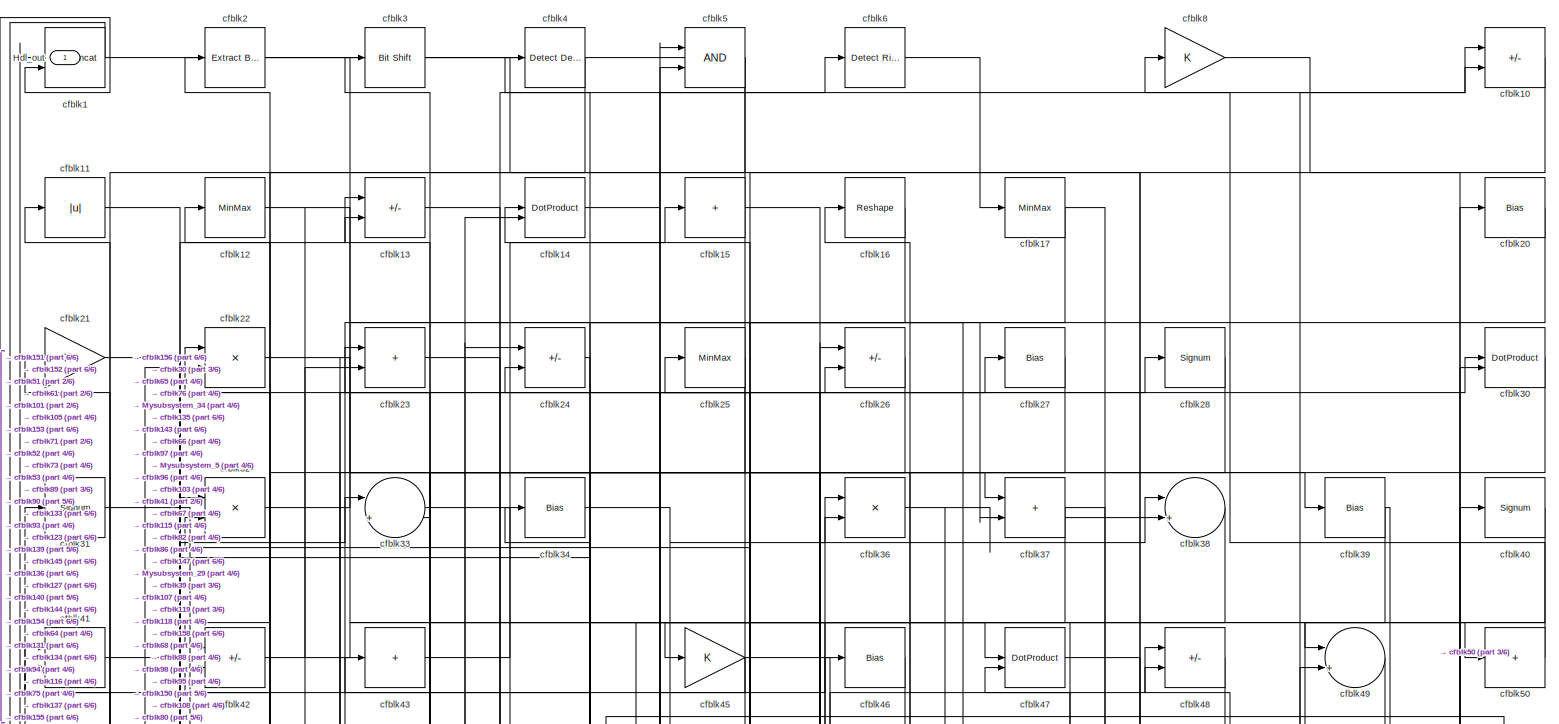
[diagram: root canvas - part 1/6, full width, top band]
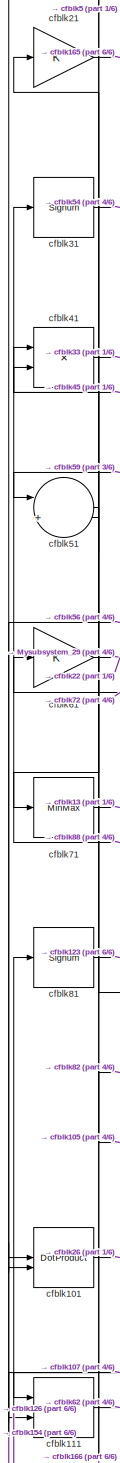
[diagram: root canvas - part 2/6, middle left region]
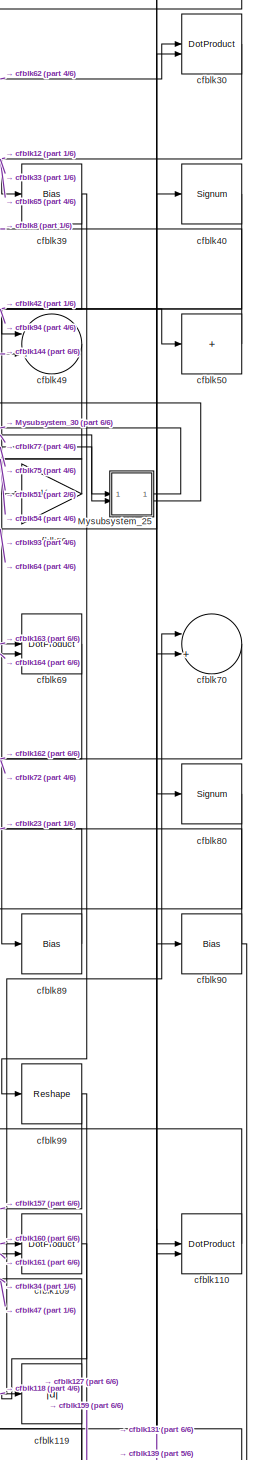
[diagram: root canvas - part 3/6, middle right region]
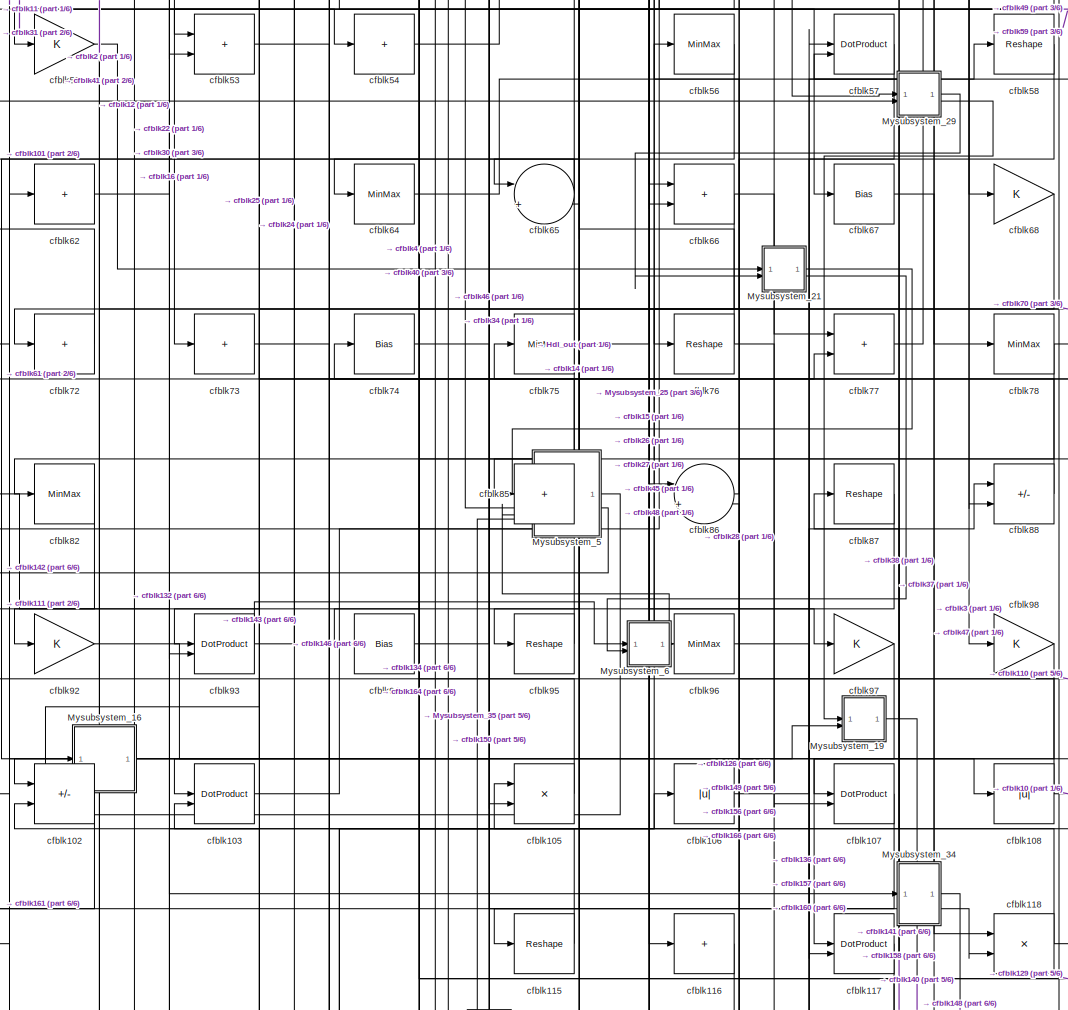
[diagram: root canvas - part 4/6, central region]
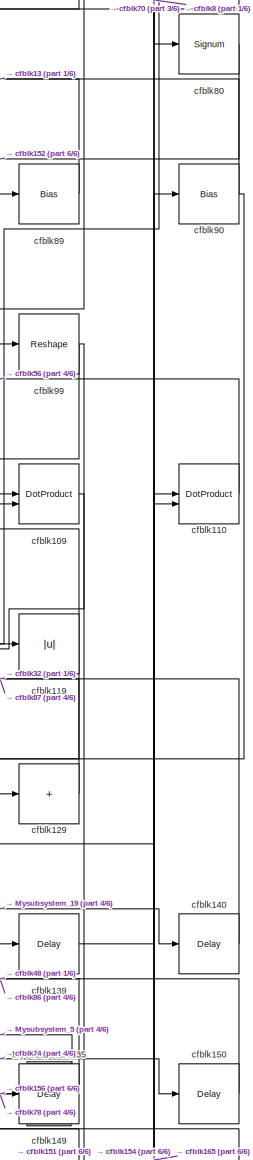
[diagram: root canvas - part 5/6, middle right region]
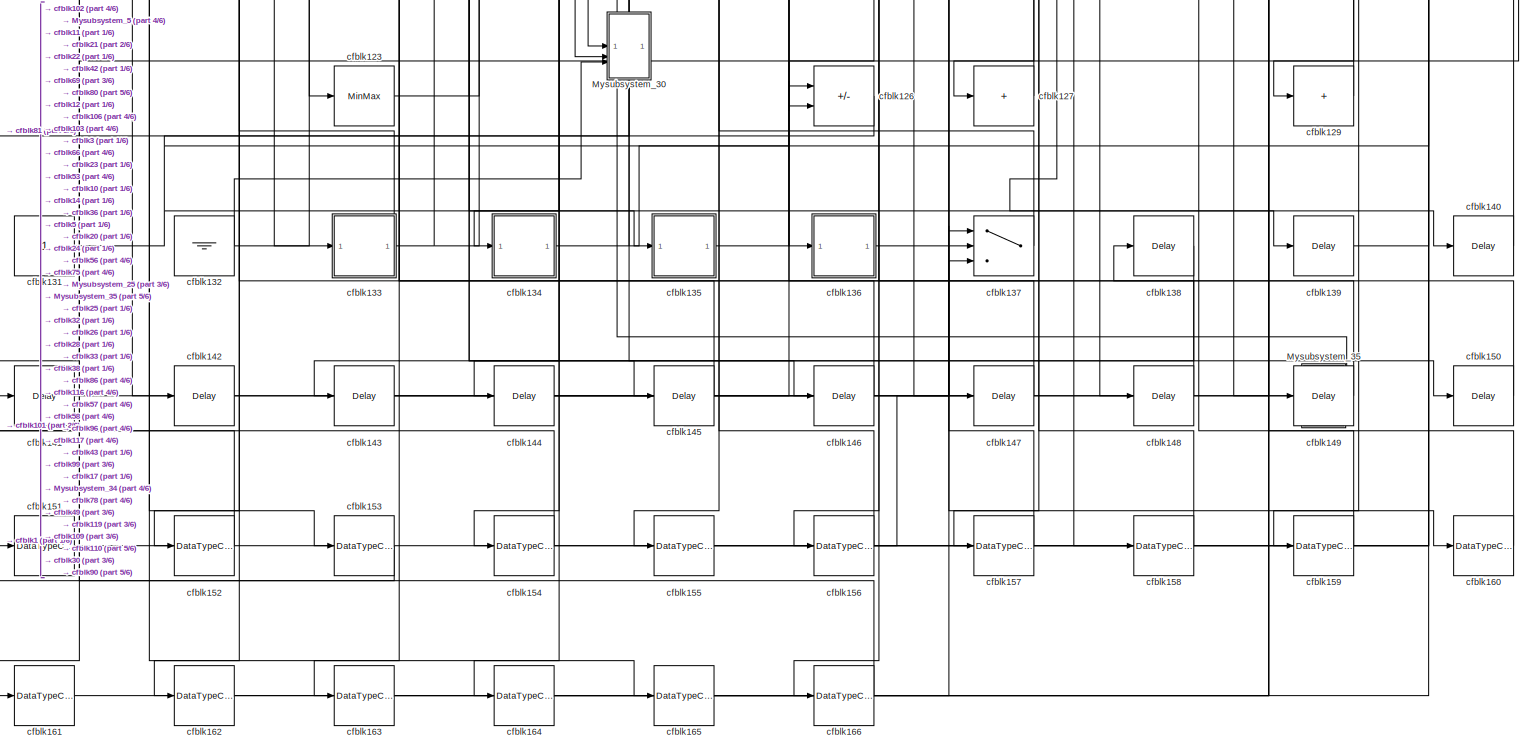
[diagram: root canvas - part 6/6, full width, bottom band]
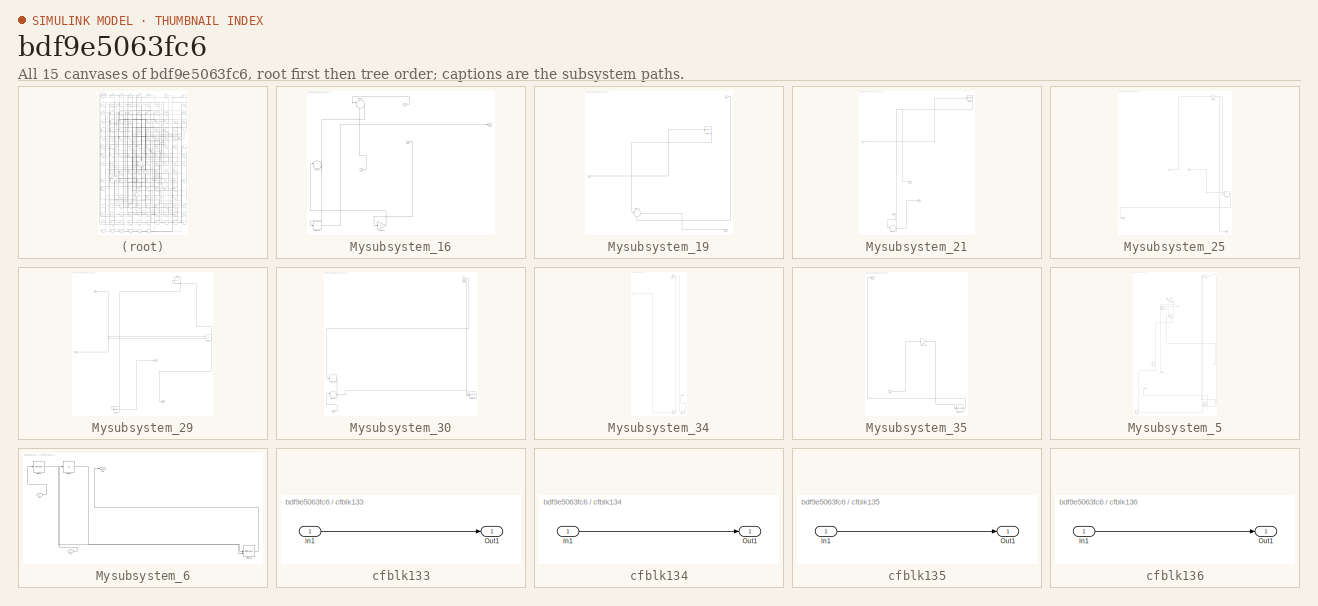
[diagram: thumbnail index - all 15 canvases of the model, root first then tree order]
MODEL slx_bdf9e5063fc6
KIND model
CONFIG AbsTol = auto
CONFIG EnableMultiTasking = off
CONFIG FixedStep = auto
CONFIG MaxStep = auto
CONFIG MinStep = auto
CONFIG RelTol = 1e-3
CONFIG SampleTimeConstraint = Unconstrained
CONFIG SolverName = VariableStepAuto
CONFIG StartTime = 0.0
CONFIG StopTime = 10.0
BLOCK [Outport] Hdl_out
  OutDataTypeStr = uint8
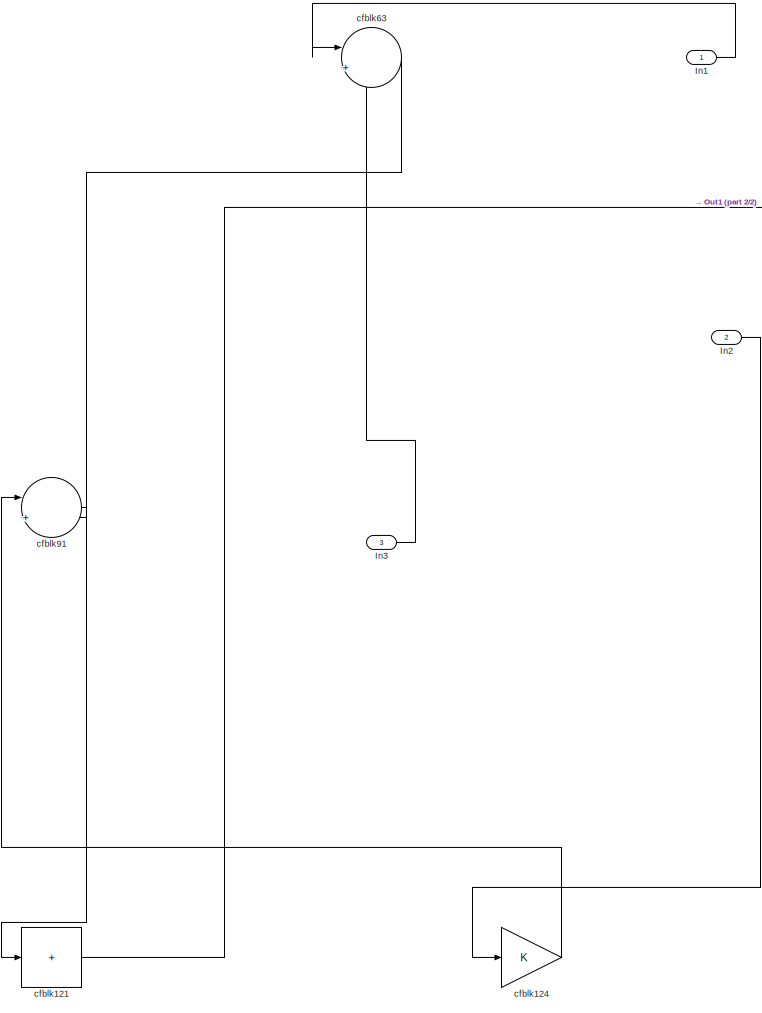
[diagram: Mysubsystem_16 - part 1/2, left side, full height]
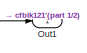
[diagram: Mysubsystem_16 - part 2/2, top right region]
BLOCK [SubSystem] Mysubsystem_16
  RTWFcnName = Mysubsystem_16
  RTWFcnNameOpts = User specified
  RTWFileNameOpts = Use function name
  RTWSystemCode = Reusable function
  TreatAsAtomicUnit = on
BLOCK [Inport] Mysubsystem_16/In1
BLOCK [Inport] Mysubsystem_16/In2
  Port = 2
BLOCK [Inport] Mysubsystem_16/In3
  Port = 3
BLOCK [Outport] Mysubsystem_16/Out1
BLOCK [Sum] Mysubsystem_16/cfblk121
  IconShape = rectangular
  Inputs = +
BLOCK [Gain] Mysubsystem_16/cfblk124
BLOCK [Sum] Mysubsystem_16/cfblk63
  Inputs = |++
BLOCK [Sum] Mysubsystem_16/cfblk91
  Inputs = |++
BLOCK [SubSystem] Mysubsystem_19
  RTWFcnName = Mysubsystem_19
  RTWFcnNameOpts = User specified
  RTWFileNameOpts = Use function name
  RTWSystemCode = Reusable function
  TreatAsAtomicUnit = on
BLOCK [Inport] Mysubsystem_19/In1
BLOCK [Inport] Mysubsystem_19/In2
  Port = 2
BLOCK [Outport] Mysubsystem_19/Out1
BLOCK [Sum] Mysubsystem_19/cfblk125
  Inputs = |++
BLOCK [Bias] Mysubsystem_19/cfblk79
  Bias = 0.0
  SaturateOnIntegerOverflow = off
BLOCK [SubSystem] Mysubsystem_21
  RTWFcnName = Mysubsystem_21
  RTWFcnNameOpts = User specified
  RTWFileNameOpts = Use function name
  RTWSystemCode = Reusable function
  TreatAsAtomicUnit = on
BLOCK [Inport] Mysubsystem_21/In1
BLOCK [Inport] Mysubsystem_21/In2
  Port = 2
BLOCK [Outport] Mysubsystem_21/Out1
BLOCK [Outport] Mysubsystem_21/Out2
  Port = 2
BLOCK [Sum] Mysubsystem_21/cfblk114
  Inputs = |++
BLOCK [Reshape] Mysubsystem_21/cfblk29
BLOCK [SubSystem] Mysubsystem_25
  RTWFcnName = Mysubsystem_25
  RTWFcnNameOpts = User specified
  RTWFileNameOpts = Use function name
  RTWSystemCode = Reusable function
  TreatAsAtomicUnit = on
BLOCK [Inport] Mysubsystem_25/In1
BLOCK [Inport] Mysubsystem_25/In2
  Port = 2
BLOCK [Outport] Mysubsystem_25/Out1
BLOCK [Outport] Mysubsystem_25/Out2
  Port = 2
BLOCK [Product] Mysubsystem_25/cfblk100
  Inputs = */
  RndMeth = Zero
  SaturateOnIntegerOverflow = on
BLOCK [Gain] Mysubsystem_25/cfblk19
BLOCK [SubSystem] Mysubsystem_29
  RTWFcnName = Mysubsystem_29
  RTWFcnNameOpts = User specified
  RTWFileNameOpts = Use function name
  RTWSystemCode = Reusable function
  TreatAsAtomicUnit = on
BLOCK [Inport] Mysubsystem_29/In1
BLOCK [Inport] Mysubsystem_29/In2
  Port = 2
BLOCK [Outport] Mysubsystem_29/Out1
BLOCK [Outport] Mysubsystem_29/Out2
  Port = 2
BLOCK [MinMax] Mysubsystem_29/cfblk104
BLOCK [Abs] Mysubsystem_29/cfblk18
  SaturateOnIntegerOverflow = off
BLOCK [Sum] Mysubsystem_29/cfblk60
  IconShape = rectangular
  Inputs = +-
BLOCK [SubSystem] Mysubsystem_30
  RTWFcnName = Mysubsystem_30
  RTWFcnNameOpts = User specified
  RTWFileNameOpts = Use function name
  RTWSystemCode = Reusable function
  TreatAsAtomicUnit = on
BLOCK [Inport] Mysubsystem_30/In1
BLOCK [Inport] Mysubsystem_30/In2
  Port = 2
BLOCK [Inport] Mysubsystem_30/In3
  Port = 3
BLOCK [Sum] Mysubsystem_30/cfblk112
  IconShape = rectangular
  Inputs = +
BLOCK [Sum] Mysubsystem_30/cfblk122
  Inputs = |++
BLOCK [Record] Mysubsystem_30/cfblk130
  CompatibilityTag = XY
  FileSettingsInternal = {"entries":[{"content":{"excelSettings":{"content":{},"type":"Streamout.ExcelSettings"}},"type":"Streamout.FileSettingStorage","uuid":""}],"packageUris":["http:\/\/schema.mathworks.com\/mf0\/streamout_blocks\/R2020a"],"version":"1.0"}
  Layout = [1 1]
  SignalsInternal = {"entries":[{"content":{},"type":"RecordBlkView.InputSignals","uuid":""}],"packageUris":["http:\/\/schema.mathworks.com\/mf0\/streamout_blocks\/R2020a"],"version":"1.0"}
  VisualizationBindings = {"xyplotplugin":{"info":[{"series":[],"subplotID":1}]}}
  st = -1
BLOCK [SubSystem] Mysubsystem_34
  RTWFcnName = Mysubsystem_34
  RTWFcnNameOpts = User specified
  RTWFileNameOpts = Use function name
  RTWSystemCode = Reusable function
  TreatAsAtomicUnit = on
BLOCK [Inport] Mysubsystem_34/In1
BLOCK [Outport] Mysubsystem_34/Out1
BLOCK [DataTypeConversion] Mysubsystem_34/cfblk167
  OutDataTypeStr = boolean
  RndMeth = Floor
  SaturateOnIntegerOverflow = off
BLOCK [DataTypeConversion] Mysubsystem_34/cfblk168
  OutDataTypeStr = uint8
  RndMeth = Floor
  SaturateOnIntegerOverflow = off
BLOCK [Reference] Mysubsystem_34/cfblk7  REF=simulink/Logic and Bit
Operations/Bitwise
Operator
  LibrarySourceBlock = hdlsllib/Logic and Bit\nOperations/Bitwise\nOperator
  SourceBlock = simulink/Logic and Bit\nOperations/Bitwise\nOperator
  SourceType = Bitwise Operator
BLOCK [SubSystem] Mysubsystem_35
  RTWFcnName = Mysubsystem_35
  RTWFcnNameOpts = User specified
  RTWFileNameOpts = Use function name
  RTWSystemCode = Reusable function
  TreatAsAtomicUnit = on
BLOCK [Inport] Mysubsystem_35/In1
BLOCK [Outport] Mysubsystem_35/Out1
BLOCK [Gain] Mysubsystem_35/cfblk128
BLOCK [DataTypeConversion] Mysubsystem_35/cfblk170
  OutDataTypeStr = uint8
  RndMeth = Floor
  SaturateOnIntegerOverflow = off
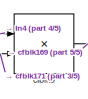
[diagram: Mysubsystem_5 - part 1/5, top right region]
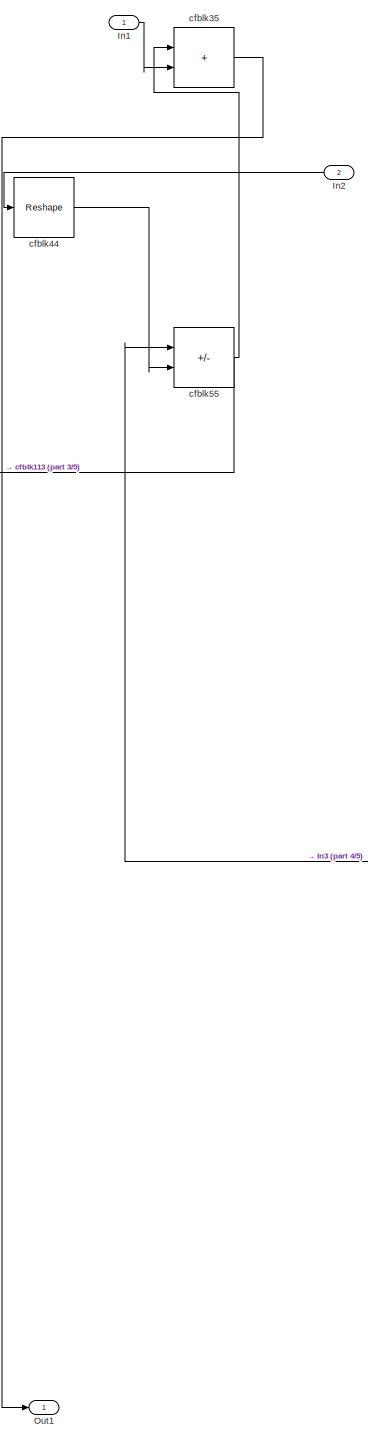
[diagram: Mysubsystem_5 - part 2/5, central region]
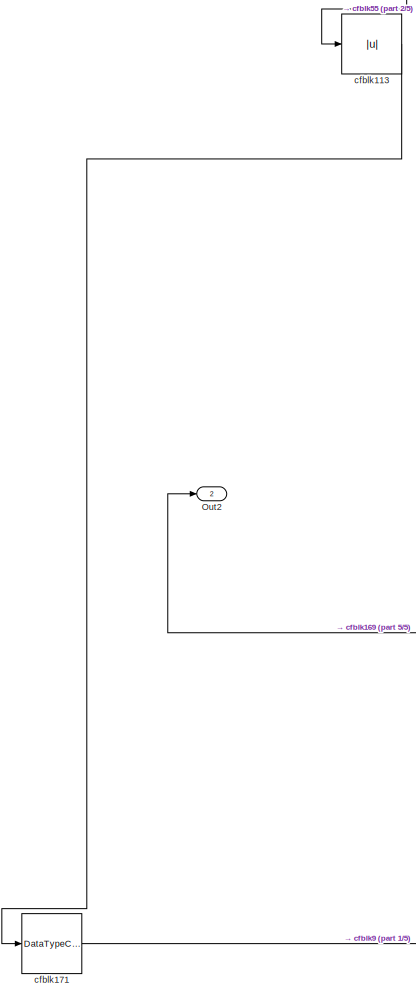
[diagram: Mysubsystem_5 - part 3/5, bottom left region]
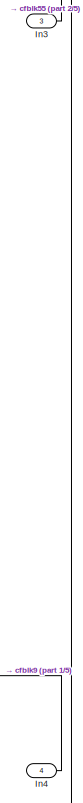
[diagram: Mysubsystem_5 - part 4/5, bottom right region]
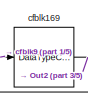
[diagram: Mysubsystem_5 - part 5/5, bottom right region]
BLOCK [SubSystem] Mysubsystem_5
  RTWFcnName = Mysubsystem_5
  RTWFcnNameOpts = User specified
  RTWFileNameOpts = Use function name
  RTWSystemCode = Reusable function
  TreatAsAtomicUnit = on
BLOCK [Inport] Mysubsystem_5/In1
BLOCK [Inport] Mysubsystem_5/In2
  Port = 2
BLOCK [Inport] Mysubsystem_5/In3
  Port = 3
BLOCK [Inport] Mysubsystem_5/In4
  Port = 4
BLOCK [Outport] Mysubsystem_5/Out1
BLOCK [Outport] Mysubsystem_5/Out2
  Port = 2
BLOCK [Abs] Mysubsystem_5/cfblk113
  SaturateOnIntegerOverflow = off
BLOCK [DataTypeConversion] Mysubsystem_5/cfblk169
  OutDataTypeStr = uint8
  RndMeth = Floor
  SaturateOnIntegerOverflow = off
BLOCK [DataTypeConversion] Mysubsystem_5/cfblk171
  OutDataTypeStr = uint8
  RndMeth = Floor
  SaturateOnIntegerOverflow = off
BLOCK [Sum] Mysubsystem_5/cfblk35
  IconShape = rectangular
BLOCK [Reshape] Mysubsystem_5/cfblk44
BLOCK [Sum] Mysubsystem_5/cfblk55
  IconShape = rectangular
  Inputs = +-
BLOCK [Product] Mysubsystem_5/cfblk9
  Inputs = */
  RndMeth = Zero
  SaturateOnIntegerOverflow = on
BLOCK [SubSystem] Mysubsystem_6
  RTWFcnName = Mysubsystem_6
  RTWFcnNameOpts = User specified
  RTWFileNameOpts = Use function name
  RTWSystemCode = Reusable function
  TreatAsAtomicUnit = on
BLOCK [Inport] Mysubsystem_6/In1
BLOCK [Inport] Mysubsystem_6/In2
  Port = 2
BLOCK [Outport] Mysubsystem_6/Out1
BLOCK [DotProduct] Mysubsystem_6/cfblk120
  OutDataTypeStr = Inherit: Inherit via internal rule
BLOCK [Reshape] Mysubsystem_6/cfblk83
BLOCK [Abs] Mysubsystem_6/cfblk84
  SaturateOnIntegerOverflow = off
BLOCK [Reference] cfblk1  REF=hdlsllib/Logic and Bit
Operations/Bit Concat
  SourceBlock = hdlsllib/Logic and Bit\nOperations/Bit Concat
  SourceType = Bit Concat
BLOCK [Sum] cfblk10
  IconShape = rectangular
  Inputs = +-
  OutDataTypeStr = uint8
BLOCK [DotProduct] cfblk101
  OutDataTypeStr = uint8
BLOCK [Sum] cfblk102
  IconShape = rectangular
  Inputs = +-
  OutDataTypeStr = uint8
BLOCK [DotProduct] cfblk103
  OutDataTypeStr = uint8
BLOCK [Product] cfblk105
  Inputs = */
  OutDataTypeStr = uint8
  RndMeth = Zero
  SaturateOnIntegerOverflow = on
BLOCK [Abs] cfblk106
  OutDataTypeStr = uint8
  SaturateOnIntegerOverflow = off
BLOCK [DotProduct] cfblk107
  OutDataTypeStr = uint8
BLOCK [Abs] cfblk108
  OutDataTypeStr = uint8
  SaturateOnIntegerOverflow = off
BLOCK [DotProduct] cfblk109
  OutDataTypeStr = uint8
BLOCK [Abs] cfblk11
  OutDataTypeStr = uint8
  SaturateOnIntegerOverflow = off
BLOCK [DotProduct] cfblk110
  OutDataTypeStr = uint8
BLOCK [Sum] cfblk111
  IconShape = rectangular
  Inputs = +-
  OutDataTypeStr = uint8
BLOCK [Reshape] cfblk115
BLOCK [Sum] cfblk116
  IconShape = rectangular
  Inputs = +
  OutDataTypeStr = uint8
BLOCK [DotProduct] cfblk117
  OutDataTypeStr = uint8
BLOCK [Product] cfblk118
  Inputs = */
  OutDataTypeStr = uint8
  RndMeth = Zero
  SaturateOnIntegerOverflow = on
BLOCK [Abs] cfblk119
  OutDataTypeStr = uint8
  SaturateOnIntegerOverflow = off
BLOCK [MinMax] cfblk12
  OutDataTypeStr = uint8
BLOCK [MinMax] cfblk123
  OutDataTypeStr = uint8
BLOCK [Sum] cfblk126
  IconShape = rectangular
  Inputs = +-
  OutDataTypeStr = uint8
BLOCK [Sum] cfblk127
  IconShape = rectangular
  Inputs = +
  OutDataTypeStr = uint8
BLOCK [Sum] cfblk129
  IconShape = rectangular
  Inputs = +
  OutDataTypeStr = uint8
BLOCK [Sum] cfblk13
  IconShape = rectangular
  Inputs = +-
  OutDataTypeStr = uint8
BLOCK [Constant] cfblk131
  OutDataTypeStr = uint8
  SampleTime = -1
BLOCK [Ground] cfblk132
BLOCK [SubSystem] cfblk133
  LibrarySourceBlock = hdlsllib/Ports &\nSubsystems/Subsystem
BLOCK [Inport] cfblk133/In1
BLOCK [Outport] cfblk133/Out1
BLOCK [SubSystem] cfblk134
  LibrarySourceBlock = hdlsllib/Ports &\nSubsystems/Subsystem
BLOCK [Inport] cfblk134/In1
BLOCK [Outport] cfblk134/Out1
BLOCK [SubSystem] cfblk135
  LibrarySourceBlock = hdlsllib/Ports &\nSubsystems/Subsystem
BLOCK [Inport] cfblk135/In1
BLOCK [Outport] cfblk135/Out1
BLOCK [SubSystem] cfblk136
  LibrarySourceBlock = hdlsllib/Ports &\nSubsystems/Subsystem
BLOCK [Inport] cfblk136/In1
BLOCK [Outport] cfblk136/Out1
BLOCK [Switch] cfblk137
  InputSameDT = off
  OutDataTypeStr = uint8
  SaturateOnIntegerOverflow = off
BLOCK [Delay] cfblk138
  InputPortMap = u0
  SampleTime = 1
BLOCK [Delay] cfblk139
  InputPortMap = u0
  SampleTime = 1
BLOCK [DotProduct] cfblk14
  OutDataTypeStr = uint8
BLOCK [Delay] cfblk140
  InputPortMap = u0
  SampleTime = 1
BLOCK [Delay] cfblk141
  InputPortMap = u0
  SampleTime = 1
BLOCK [Delay] cfblk142
  InputPortMap = u0
  SampleTime = 1
BLOCK [Delay] cfblk143
  InputPortMap = u0
  SampleTime = 1
BLOCK [Delay] cfblk144
  InputPortMap = u0
  SampleTime = 1
BLOCK [Delay] cfblk145
  InputPortMap = u0
  SampleTime = 1
BLOCK [Delay] cfblk146
  InputPortMap = u0
  SampleTime = 1
BLOCK [Delay] cfblk147
  InputPortMap = u0
  SampleTime = 1
BLOCK [Delay] cfblk148
  InputPortMap = u0
  SampleTime = 1
BLOCK [Delay] cfblk149
  InputPortMap = u0
  SampleTime = 1
BLOCK [Sum] cfblk15
  IconShape = rectangular
  Inputs = +
  OutDataTypeStr = uint8
BLOCK [Delay] cfblk150
  InputPortMap = u0
  SampleTime = 1
BLOCK [DataTypeConversion] cfblk151
  OutDataTypeStr = uint8
  RndMeth = Floor
  SaturateOnIntegerOverflow = off
BLOCK [DataTypeConversion] cfblk152
  OutDataTypeStr = uint8
  RndMeth = Floor
  SaturateOnIntegerOverflow = off
BLOCK [DataTypeConversion] cfblk153
  OutDataTypeStr = uint8
  RndMeth = Floor
  SaturateOnIntegerOverflow = off
BLOCK [DataTypeConversion] cfblk154
  OutDataTypeStr = uint8
  RndMeth = Floor
  SaturateOnIntegerOverflow = off
BLOCK [DataTypeConversion] cfblk155
  OutDataTypeStr = uint8
  RndMeth = Floor
  SaturateOnIntegerOverflow = off
BLOCK [DataTypeConversion] cfblk156
  OutDataTypeStr = uint8
  RndMeth = Floor
  SaturateOnIntegerOverflow = off
BLOCK [DataTypeConversion] cfblk157
  OutDataTypeStr = uint8
  RndMeth = Floor
  SaturateOnIntegerOverflow = off
BLOCK [DataTypeConversion] cfblk158
  OutDataTypeStr = uint8
  RndMeth = Floor
  SaturateOnIntegerOverflow = off
BLOCK [DataTypeConversion] cfblk159
  OutDataTypeStr = uint8
  RndMeth = Floor
  SaturateOnIntegerOverflow = off
BLOCK [Reshape] cfblk16
BLOCK [DataTypeConversion] cfblk160
  OutDataTypeStr = uint8
  RndMeth = Floor
  SaturateOnIntegerOverflow = off
BLOCK [DataTypeConversion] cfblk161
  OutDataTypeStr = uint8
  RndMeth = Floor
  SaturateOnIntegerOverflow = off
BLOCK [DataTypeConversion] cfblk162
  OutDataTypeStr = uint8
  RndMeth = Floor
  SaturateOnIntegerOverflow = off
BLOCK [DataTypeConversion] cfblk163
  OutDataTypeStr = uint8
  RndMeth = Floor
  SaturateOnIntegerOverflow = off
BLOCK [DataTypeConversion] cfblk164
  OutDataTypeStr = uint8
  RndMeth = Floor
  SaturateOnIntegerOverflow = off
BLOCK [DataTypeConversion] cfblk165
  OutDataTypeStr = uint8
  RndMeth = Floor
  SaturateOnIntegerOverflow = off
BLOCK [DataTypeConversion] cfblk166
  OutDataTypeStr = uint8
  RndMeth = Floor
  SaturateOnIntegerOverflow = off
BLOCK [MinMax] cfblk17
  OutDataTypeStr = uint8
BLOCK [Reference] cfblk2  REF=simulink/Logic and Bit
Operations/Extract Bits
  LibrarySourceBlock = hdlsllib/Logic and Bit\nOperations/Extract Bits
  SourceBlock = simulink/Logic and Bit\nOperations/Extract Bits
  SourceType = Extract Bits
BLOCK [Bias] cfblk20
  Bias = 0.0
  SaturateOnIntegerOverflow = off
BLOCK [Gain] cfblk21
  OutDataTypeStr = uint8
BLOCK [Product] cfblk22
  Inputs = */
  OutDataTypeStr = uint8
  RndMeth = Zero
  SaturateOnIntegerOverflow = on
BLOCK [Sum] cfblk23
  IconShape = rectangular
  OutDataTypeStr = uint8
BLOCK [Sum] cfblk24
  IconShape = rectangular
  Inputs = +-
  OutDataTypeStr = uint8
BLOCK [MinMax] cfblk25
  OutDataTypeStr = uint8
BLOCK [Sum] cfblk26
  IconShape = rectangular
  Inputs = +-
  OutDataTypeStr = uint8
BLOCK [Bias] cfblk27
  Bias = 0.0
  SaturateOnIntegerOverflow = off
BLOCK [Signum] cfblk28
BLOCK [Reference] cfblk3  REF=hdlsllib/Logic and Bit
Operations/Bit Shift
  SourceBlock = hdlsllib/Logic and Bit\nOperations/Bit Shift
  SourceType = Bit Shift
BLOCK [DotProduct] cfblk30
  OutDataTypeStr = uint8
BLOCK [Signum] cfblk31
BLOCK [Product] cfblk32
  Inputs = */
  OutDataTypeStr = uint8
  RndMeth = Zero
  SaturateOnIntegerOverflow = on
BLOCK [Sum] cfblk33
  Inputs = |++
  OutDataTypeStr = uint8
BLOCK [Bias] cfblk34
  Bias = 0.0
  SaturateOnIntegerOverflow = off
BLOCK [Product] cfblk36
  Inputs = */
  OutDataTypeStr = uint8
  RndMeth = Zero
  SaturateOnIntegerOverflow = on
BLOCK [Sum] cfblk37
  IconShape = rectangular
  OutDataTypeStr = uint8
BLOCK [Sum] cfblk38
  Inputs = |++
  OutDataTypeStr = uint8
BLOCK [Bias] cfblk39
  Bias = 0.0
  SaturateOnIntegerOverflow = off
BLOCK [Reference] cfblk4  REF=simulink/Logic and Bit
Operations/Detect
Decrease
  LibrarySourceBlock = hdlsllib/Logic and Bit\nOperations/Detect\nDecrease
  SourceBlock = simulink/Logic and Bit\nOperations/Detect\nDecrease
  SourceType = Detect Decrease
BLOCK [Signum] cfblk40
BLOCK [Product] cfblk41
  Inputs = */
  OutDataTypeStr = uint8
  RndMeth = Zero
  SaturateOnIntegerOverflow = on
BLOCK [Sum] cfblk42
  IconShape = rectangular
  Inputs = +-
  OutDataTypeStr = uint8
BLOCK [Sum] cfblk43
  IconShape = rectangular
  Inputs = +
  OutDataTypeStr = uint8
BLOCK [Gain] cfblk45
  OutDataTypeStr = uint8
BLOCK [Bias] cfblk46
  Bias = 0.0
  SaturateOnIntegerOverflow = off
BLOCK [DotProduct] cfblk47
  OutDataTypeStr = uint8
BLOCK [Sum] cfblk48
  IconShape = rectangular
  Inputs = +-
  OutDataTypeStr = uint8
BLOCK [Sum] cfblk49
  Inputs = |++
  OutDataTypeStr = uint8
BLOCK [Logic] cfblk5
  AllPortsSameDT = off
  OutDataTypeStr = boolean
BLOCK [Sum] cfblk50
  IconShape = rectangular
  Inputs = +
  OutDataTypeStr = uint8
BLOCK [Sum] cfblk51
  Inputs = |++
  OutDataTypeStr = uint8
BLOCK [Gain] cfblk52
  OutDataTypeStr = uint8
BLOCK [Sum] cfblk53
  IconShape = rectangular
  OutDataTypeStr = uint8
BLOCK [Sum] cfblk54
  IconShape = rectangular
  Inputs = +
  OutDataTypeStr = uint8
BLOCK [MinMax] cfblk56
  OutDataTypeStr = uint8
BLOCK [DotProduct] cfblk57
  OutDataTypeStr = uint8
BLOCK [Reshape] cfblk58
BLOCK [Gain] cfblk59
  OutDataTypeStr = uint8
BLOCK [Reference] cfblk6  REF=hdlsllib/Logic and Bit
Operations/Detect Rise
Nonnegative
  SourceBlock = hdlsllib/Logic and Bit\nOperations/Detect Rise\nNonnegative
  SourceType = Detect Rise Nonnegative
BLOCK [Gain] cfblk61
  OutDataTypeStr = uint8
BLOCK [Sum] cfblk62
  IconShape = rectangular
  Inputs = +
  OutDataTypeStr = uint8
BLOCK [MinMax] cfblk64
  OutDataTypeStr = uint8
BLOCK [Sum] cfblk65
  Inputs = |++
  OutDataTypeStr = uint8
BLOCK [Sum] cfblk66
  IconShape = rectangular
  OutDataTypeStr = uint8
BLOCK [Bias] cfblk67
  Bias = 0.0
  SaturateOnIntegerOverflow = off
BLOCK [Gain] cfblk68
  OutDataTypeStr = uint8
BLOCK [DotProduct] cfblk69
  OutDataTypeStr = uint8
BLOCK [Sum] cfblk70
  Inputs = |++
  OutDataTypeStr = uint8
BLOCK [MinMax] cfblk71
  OutDataTypeStr = uint8
BLOCK [Sum] cfblk72
  IconShape = rectangular
  Inputs = +
  OutDataTypeStr = uint8
BLOCK [Sum] cfblk73
  IconShape = rectangular
  Inputs = +
  OutDataTypeStr = uint8
BLOCK [Bias] cfblk74
  Bias = 0.0
  SaturateOnIntegerOverflow = off
BLOCK [MinMax] cfblk75
  OutDataTypeStr = uint8
BLOCK [Reshape] cfblk76
BLOCK [Sum] cfblk77
  IconShape = rectangular
  OutDataTypeStr = uint8
BLOCK [MinMax] cfblk78
  OutDataTypeStr = uint8
BLOCK [Gain] cfblk8
  OutDataTypeStr = uint8
BLOCK [Signum] cfblk80
BLOCK [Signum] cfblk81
BLOCK [MinMax] cfblk82
  OutDataTypeStr = uint8
BLOCK [Sum] cfblk85
  IconShape = rectangular
  Inputs = +
  OutDataTypeStr = uint8
BLOCK [Sum] cfblk86
  Inputs = |++
  OutDataTypeStr = uint8
BLOCK [Reshape] cfblk87
BLOCK [Sum] cfblk88
  IconShape = rectangular
  Inputs = +-
  OutDataTypeStr = uint8
BLOCK [Bias] cfblk89
  Bias = 0.0
  SaturateOnIntegerOverflow = off
BLOCK [Bias] cfblk90
  Bias = 0.0
  SaturateOnIntegerOverflow = off
BLOCK [Gain] cfblk92
  OutDataTypeStr = uint8
BLOCK [DotProduct] cfblk93
  OutDataTypeStr = uint8
BLOCK [Bias] cfblk94
  Bias = 0.0
  SaturateOnIntegerOverflow = off
BLOCK [Reshape] cfblk95
BLOCK [MinMax] cfblk96
  OutDataTypeStr = uint8
BLOCK [Gain] cfblk97
  OutDataTypeStr = uint8
BLOCK [Gain] cfblk98
  OutDataTypeStr = uint8
BLOCK [Reshape] cfblk99
LINE Mysubsystem_16/In1:1 -> Mysubsystem_16/cfblk63:1
LINE Mysubsystem_16/In2:1 -> Mysubsystem_16/cfblk124:1
LINE Mysubsystem_16/In3:1 -> Mysubsystem_16/cfblk63:2
LINE Mysubsystem_16/cfblk121:1 -> Mysubsystem_16/Out1:1
LINE Mysubsystem_16/cfblk124:1 -> Mysubsystem_16/cfblk91:1
LINE Mysubsystem_16/cfblk63:1 -> Mysubsystem_16/cfblk91:2
LINE Mysubsystem_16/cfblk91:1 -> Mysubsystem_16/cfblk121:1
LINE Mysubsystem_16:1 -> Mysubsystem_19:2
LINE Mysubsystem_19/In1:1 -> Mysubsystem_19/cfblk125:2
LINE Mysubsystem_19/In2:1 -> Mysubsystem_19/cfblk79:1
LINE Mysubsystem_19/cfblk125:1 -> Mysubsystem_19/Out1:1
LINE Mysubsystem_19/cfblk79:1 -> Mysubsystem_19/cfblk125:1
LINE Mysubsystem_19:1 -> cfblk140:1
LINE Mysubsystem_21/In1:1 -> Mysubsystem_21/cfblk29:1
LINE Mysubsystem_21/In2:1 -> Mysubsystem_21/cfblk114:1
LINE Mysubsystem_21/cfblk114:1 -> Mysubsystem_21/Out2:1
NET Mysubsystem_21/cfblk29:1 -> Mysubsystem_21/Out1:1, Mysubsystem_21/cfblk114:2
LINE Mysubsystem_21:1 -> Mysubsystem_5:1
LINE Mysubsystem_21:2 -> Mysubsystem_6:2
LINE Mysubsystem_25/In1:1 -> Mysubsystem_25/cfblk19:1
LINE Mysubsystem_25/In2:1 -> Mysubsystem_25/cfblk100:1
LINE Mysubsystem_25/cfblk100:1 -> Mysubsystem_25/Out1:1
NET Mysubsystem_25/cfblk19:1 -> Mysubsystem_25/Out2:1, Mysubsystem_25/cfblk100:2
LINE Mysubsystem_25:1 -> Mysubsystem_30:1
LINE Mysubsystem_25:2 -> Mysubsystem_30:2
LINE Mysubsystem_29/In1:1 -> Mysubsystem_29/cfblk60:2
LINE Mysubsystem_29/In2:1 -> Mysubsystem_29/cfblk60:1
LINE Mysubsystem_29/cfblk104:1 -> Mysubsystem_29/Out1:1
LINE Mysubsystem_29/cfblk18:1 -> Mysubsystem_29/cfblk104:1
NET Mysubsystem_29/cfblk60:1 -> Mysubsystem_29/Out2:1, Mysubsystem_29/cfblk18:1
LINE Mysubsystem_29:1 -> Mysubsystem_21:2
LINE Mysubsystem_29:2 -> Mysubsystem_19:1
LINE Mysubsystem_30/In1:1 -> Mysubsystem_30/cfblk112:1
LINE Mysubsystem_30/In2:1 -> Mysubsystem_30/cfblk130:2
LINE Mysubsystem_30/In3:1 -> Mysubsystem_30/cfblk122:1
LINE Mysubsystem_30/cfblk112:1 -> Mysubsystem_30/cfblk122:2
LINE Mysubsystem_30/cfblk122:1 -> Mysubsystem_30/cfblk130:1
LINE Mysubsystem_34/In1:1 -> Mysubsystem_34/cfblk167:1
LINE Mysubsystem_34/cfblk167:1 -> Mysubsystem_34/cfblk7:1
LINE Mysubsystem_34/cfblk168:1 -> Mysubsystem_34/Out1:1
LINE Mysubsystem_34/cfblk7:1 -> Mysubsystem_34/cfblk168:1
LINE Mysubsystem_34:1 -> cfblk148:1
LINE Mysubsystem_35/In1:1 -> Mysubsystem_35/cfblk128:1
LINE Mysubsystem_35/cfblk128:1 -> Mysubsystem_35/cfblk170:1
LINE Mysubsystem_35/cfblk170:1 -> Mysubsystem_35/Out1:1
LINE Mysubsystem_35:1 -> Mysubsystem_5:4
LINE Mysubsystem_5/In1:1 -> Mysubsystem_5/cfblk35:2
LINE Mysubsystem_5/In2:1 -> Mysubsystem_5/cfblk44:1
LINE Mysubsystem_5/In3:1 -> Mysubsystem_5/cfblk55:1
LINE Mysubsystem_5/In4:1 -> Mysubsystem_5/cfblk9:1
LINE Mysubsystem_5/cfblk113:1 -> Mysubsystem_5/cfblk171:1
LINE Mysubsystem_5/cfblk169:1 -> Mysubsystem_5/Out2:1
LINE Mysubsystem_5/cfblk171:1 -> Mysubsystem_5/cfblk9:2
LINE Mysubsystem_5/cfblk35:1 -> Mysubsystem_5/Out1:1
LINE Mysubsystem_5/cfblk44:1 -> Mysubsystem_5/cfblk55:2
NET Mysubsystem_5/cfblk55:1 -> Mysubsystem_5/cfblk113:1, Mysubsystem_5/cfblk35:1
LINE Mysubsystem_5/cfblk9:1 -> Mysubsystem_5/cfblk169:1
LINE Mysubsystem_5:1 -> Mysubsystem_16:2
LINE Mysubsystem_5:2 -> cfblk142:1
LINE Mysubsystem_6/In1:1 -> Mysubsystem_6/cfblk83:1
LINE Mysubsystem_6/In2:1 -> Mysubsystem_6/cfblk84:1
LINE Mysubsystem_6/cfblk120:1 -> Mysubsystem_6/Out1:1
LINE Mysubsystem_6/cfblk83:1 -> Mysubsystem_6/cfblk120:1
LINE Mysubsystem_6/cfblk84:1 -> Mysubsystem_6/cfblk120:2
LINE Mysubsystem_6:1 -> Mysubsystem_5:3
LINE cfblk101:1 -> cfblk26:2
LINE cfblk102:1 -> cfblk161:1
LINE cfblk103:1 -> cfblk48:1
NET cfblk105:1 -> Mysubsystem_16:3, cfblk2:1, cfblk41:1
LINE cfblk106:1 -> cfblk88:1
LINE cfblk107:1 -> cfblk111:2
NET cfblk108:1 -> cfblk10:2, cfblk74:1
LINE cfblk109:1 -> cfblk159:1
NET cfblk10:1 -> cfblk45:1, cfblk65:2, cfblk88:2
LINE cfblk110:1 -> cfblk56:1
LINE cfblk111:1 -> cfblk62:1
LINE cfblk115:1 -> cfblk102:2
LINE cfblk116:1 -> cfblk126:2
LINE cfblk117:1 -> cfblk141:1
NET cfblk118:1 -> cfblk105:1, cfblk70:1
NET cfblk119:1 -> cfblk127:1, cfblk34:1, cfblk47:2
NET cfblk11:1 -> cfblk105:2, cfblk153:1
NET cfblk123:1 -> cfblk10:1, cfblk36:1
LINE cfblk126:1 -> cfblk81:1
LINE cfblk127:1 -> cfblk43:1
LINE cfblk129:1 -> cfblk87:1
NET cfblk12:1 -> Mysubsystem_29:1, cfblk133:1, cfblk39:1
NET cfblk131:1 -> cfblk135:1, cfblk30:2, cfblk5:2
NET cfblk132:1 -> Mysubsystem_30:3, cfblk106:1
LINE cfblk133/In1:1 -> cfblk133/Out1:1
NET cfblk133:1 -> cfblk14:2, cfblk22:1, cfblk5:1
LINE cfblk134/In1:1 -> cfblk134/Out1:1
NET cfblk134:1 -> cfblk28:1, cfblk86:1
LINE cfblk135/In1:1 -> cfblk135/Out1:1
LINE cfblk135:1 -> cfblk38:1
LINE cfblk136/In1:1 -> cfblk136/Out1:1
LINE cfblk136:1 -> cfblk58:1
LINE cfblk137:1 -> cfblk32:2
LINE cfblk138:1 -> cfblk163:1
LINE cfblk139:1 -> cfblk70:2
LINE cfblk13:1 -> cfblk139:1
LINE cfblk140:1 -> cfblk32:1
LINE cfblk141:1 -> cfblk137:2
LINE cfblk142:1 -> cfblk137:1
LINE cfblk143:1 -> cfblk26:1
LINE cfblk144:1 -> cfblk49:2
LINE cfblk145:1 -> cfblk42:2
LINE cfblk146:1 -> cfblk103:2
LINE cfblk147:1 -> cfblk3:1
LINE cfblk148:1 -> cfblk126:1
LINE cfblk149:1 -> cfblk86:2
NET cfblk14:1 -> cfblk118:2, cfblk6:1
LINE cfblk150:1 -> cfblk48:2
LINE cfblk151:1 -> cfblk110:2
LINE cfblk152:1 -> cfblk1:1
LINE cfblk153:1 -> cfblk1:2
NET cfblk154:1 -> cfblk101:1, cfblk90:1
LINE cfblk155:1 -> cfblk20:1
NET cfblk156:1 -> Mysubsystem_35:1, cfblk25:1
LINE cfblk157:1 -> cfblk57:1
LINE cfblk158:1 -> cfblk57:2
LINE cfblk159:1 -> cfblk138:1
LINE cfblk15:1 -> cfblk97:1
LINE cfblk160:1 -> cfblk109:1
LINE cfblk161:1 -> cfblk109:2
LINE cfblk162:1 -> cfblk137:3
LINE cfblk163:1 -> cfblk69:1
LINE cfblk164:1 -> cfblk69:2
LINE cfblk165:1 -> cfblk110:1
LINE cfblk166:1 -> cfblk21:1
LINE cfblk16:1 -> cfblk73:1
NET cfblk17:1 -> cfblk155:1, cfblk158:1, cfblk37:2
LINE cfblk1:1 -> cfblk151:1
LINE cfblk20:1 -> cfblk154:1
LINE cfblk21:1 -> cfblk165:1
NET cfblk22:1 -> Mysubsystem_34:1, cfblk66:1
LINE cfblk23:1 -> cfblk145:1
LINE cfblk24:1 -> cfblk144:1
LINE cfblk25:1 -> cfblk93:1
NET cfblk26:1 -> cfblk52:1, cfblk66:2
LINE cfblk27:1 -> cfblk64:1
NET cfblk28:1 -> cfblk53:2, cfblk76:1
LINE cfblk2:1 -> cfblk47:1
NET cfblk30:1 -> cfblk33:2, cfblk65:1
LINE cfblk31:1 -> cfblk54:1
LINE cfblk32:1 -> cfblk37:1
LINE cfblk33:1 -> cfblk136:1
NET cfblk34:1 -> cfblk116:1, cfblk36:2
NET cfblk36:1 -> cfblk147:1, cfblk38:2
NET cfblk37:1 -> Mysubsystem_5:2, cfblk118:1, cfblk96:1
NET cfblk38:1 -> cfblk107:1, cfblk53:1
NET cfblk39:1 -> cfblk89:1, cfblk99:1
LINE cfblk3:1 -> cfblk68:1
LINE cfblk40:1 -> cfblk94:1
LINE cfblk41:1 -> cfblk33:1
NET cfblk42:1 -> cfblk23:2, cfblk50:1
LINE cfblk43:1 -> cfblk15:1
NET cfblk45:1 -> cfblk41:2, cfblk67:1
NET cfblk46:1 -> cfblk115:1, cfblk82:1
LINE cfblk47:1 -> cfblk98:1
LINE cfblk48:1 -> cfblk95:1
LINE cfblk49:1 -> cfblk93:2
LINE cfblk4:1 -> cfblk42:1
NET cfblk50:1 -> cfblk49:1, cfblk8:1
LINE cfblk51:1 -> cfblk71:1
LINE cfblk52:1 -> Mysubsystem_21:1
LINE cfblk53:1 -> cfblk146:1
LINE cfblk54:1 -> cfblk59:1
NET cfblk56:1 -> cfblk101:2, cfblk164:1
LINE cfblk57:1 -> cfblk156:1
LINE cfblk58:1 -> cfblk117:2
LINE cfblk59:1 -> cfblk51:1
LINE cfblk5:1 -> cfblk51:2
NET cfblk61:1 -> Mysubsystem_29:2, cfblk22:2
LINE cfblk62:1 -> cfblk30:1
LINE cfblk64:1 -> cfblk40:1
LINE cfblk65:1 -> Mysubsystem_16:1
NET cfblk66:1 -> cfblk143:1, cfblk77:1
LINE cfblk67:1 -> cfblk78:1
LINE cfblk68:1 -> cfblk85:1
LINE cfblk69:1 -> cfblk162:1
LINE cfblk6:1 -> cfblk17:1
LINE cfblk70:1 -> cfblk72:1
LINE cfblk71:1 -> cfblk13:1
LINE cfblk72:1 -> cfblk31:1
NET cfblk73:1 -> cfblk103:1, cfblk77:2
LINE cfblk74:1 -> cfblk150:1
NET cfblk75:1 -> Hdl_out:1, Mysubsystem_25:1, cfblk134:1, cfblk27:1
NET cfblk76:1 -> cfblk107:2, cfblk14:1, cfblk24:2
LINE cfblk77:1 -> Mysubsystem_25:2
NET cfblk78:1 -> cfblk149:1, cfblk166:1
LINE cfblk80:1 -> cfblk152:1
LINE cfblk81:1 -> cfblk123:1
LINE cfblk82:1 -> cfblk111:1
LINE cfblk85:1 -> cfblk75:1
LINE cfblk86:1 -> cfblk16:1
LINE cfblk87:1 -> cfblk92:1
LINE cfblk88:1 -> cfblk61:1
LINE cfblk89:1 -> cfblk23:1
LINE cfblk8:1 -> cfblk80:1
NET cfblk90:1 -> cfblk129:1, cfblk13:2
LINE cfblk92:1 -> cfblk108:1
NET cfblk93:1 -> Mysubsystem_6:1, cfblk24:1
LINE cfblk94:1 -> cfblk46:1
NET cfblk95:1 -> cfblk11:1, cfblk12:1, cfblk4:1
LINE cfblk96:1 -> cfblk160:1
LINE cfblk97:1 -> cfblk117:1
LINE cfblk98:1 -> cfblk102:1
NET cfblk99:1 -> cfblk119:1, cfblk157:1
note: NET lines group one-source signal fan-out (src -> all destinations, sorted); 1:1 wires keep LINE
